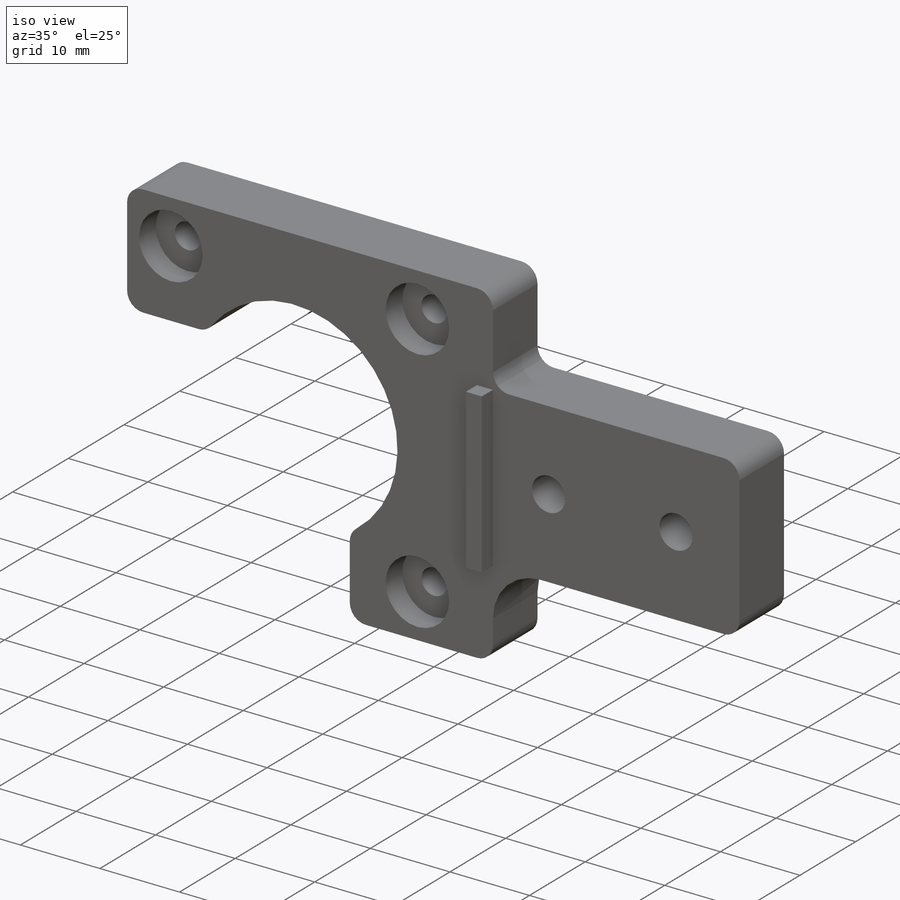
[diagram: iso view]
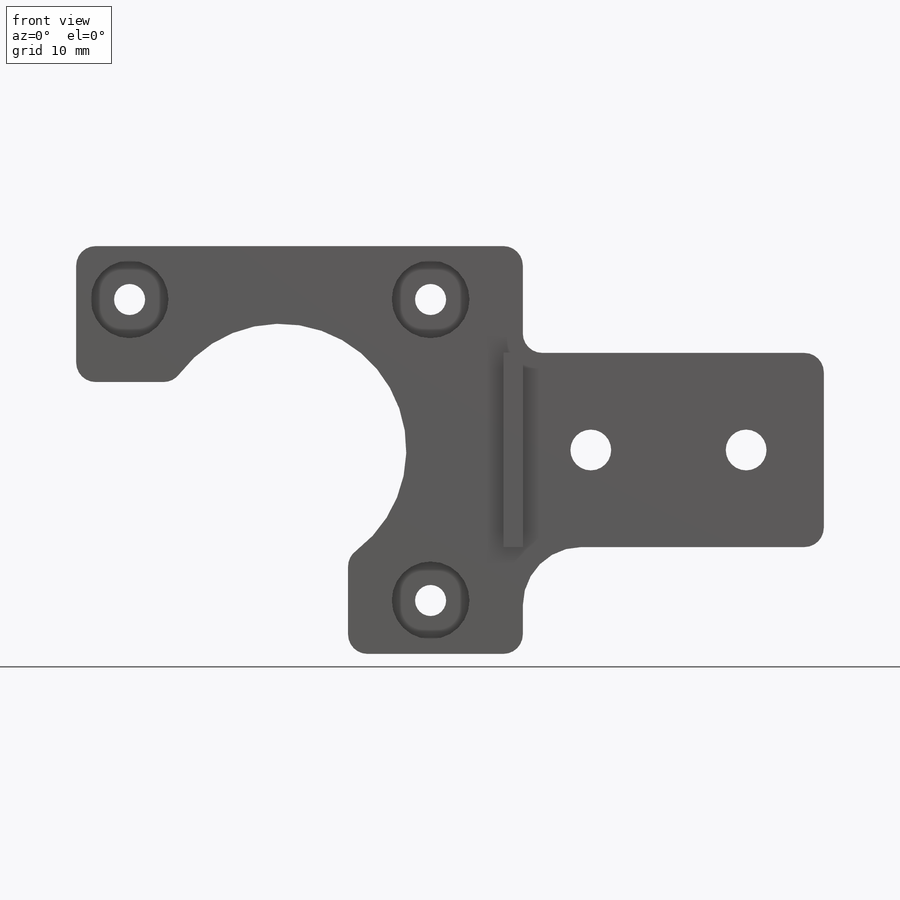
[diagram: front view]
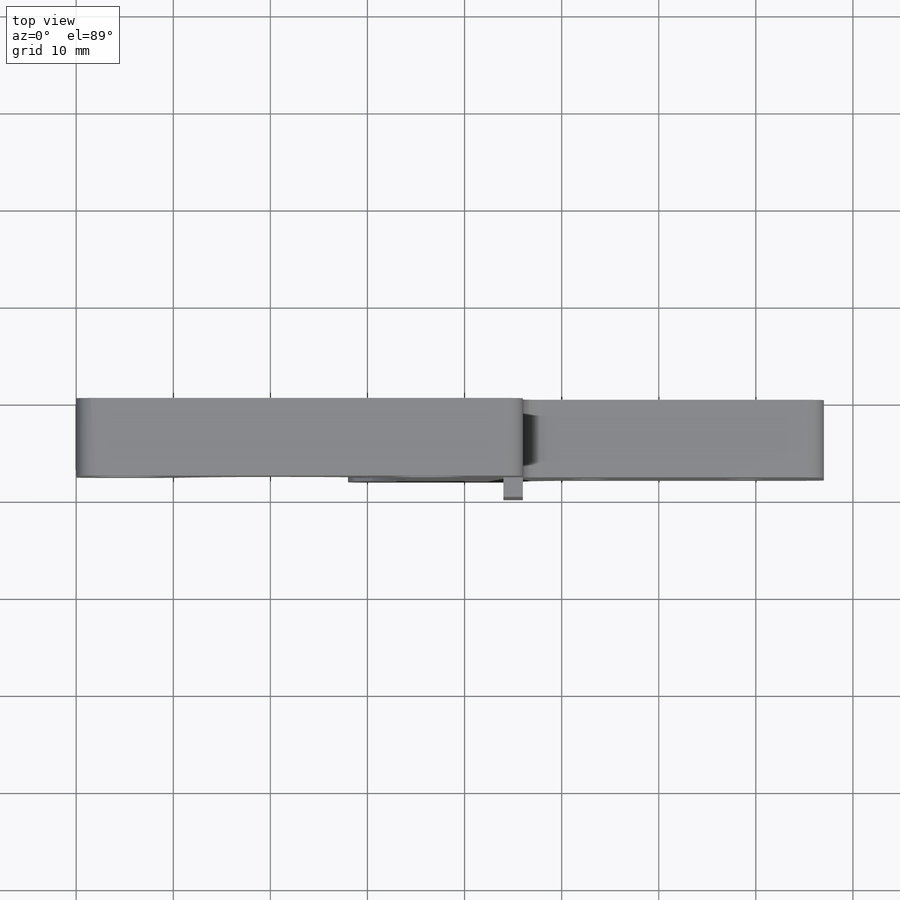
[diagram: top view]
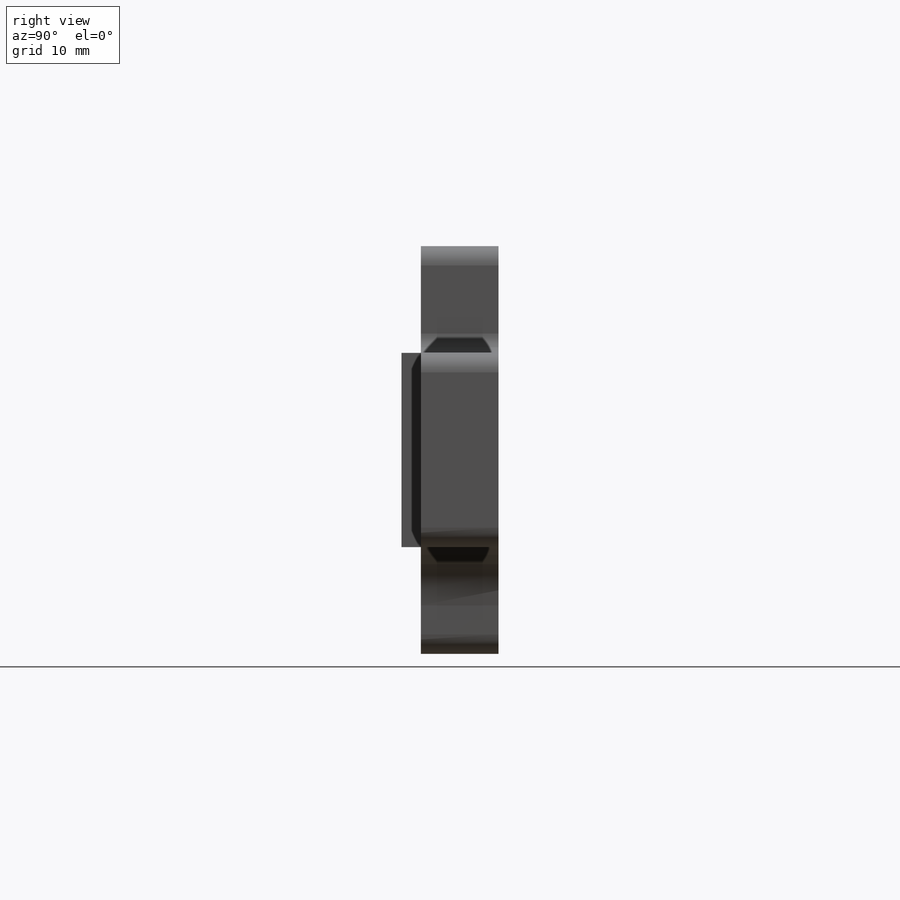
[diagram: right view]
SOLIDWORKS PART (.sldprt)
format: sldprt  version: not decoded by parser v0  size: 301,568 bytes
history: native  units: mm
features: sketch x8, cut_extrude x6, plane x3, extrude x2, fillet x2, material x1 (+8 scaffold rows collapsed)
feature tree (30):
  scaffold x8  (default folders/planes/origin — collapsed)
  material  "Material <not specified>"
  plane  "Plan de face"
  plane  "Plan de dessus"
  plane  "Plan de droite"
  sketch  "Esquisse1"  dims[D1=42.0mm D2=77.0mm]
  extrude  "Boss.-Extru.1"  Depth=8mm
  sketch  "Esquisse3"  dims[c1.D2=8.0mm c1.D3=8.0mm c1.D4=8.0mm c1.D1=42.0mm c1.D5=5.5mm c1.D6=5.5mm c1.D7=5.5mm c1.D8=5.5mm c1.D9=5500.0mm c1.D10=~8486.566846mm c1.D11=2750.0mm c1.D12=5500.0mm c2.D9=5.5mm c2.D10=5.5mm]
  cut_extrude  "Enlèv. mat.-Extru.1"  Depth=3mm
  sketch  "Esquisse4"  dims[D1=26.0mm D2=21.0mm D3=21.0mm]
  cut_extrude  "Enlèv. mat.-Extru.2"  [1 undecoded]
  sketch  "Esquisse5"  dims[D1=28.0mm D2=28.0mm]
  cut_extrude  "Enlèv. mat.-Extru.3"  [1 undecoded]
  sketch  "Esquisse10"  dims[D1=3.2mm D2=3.2mm D3=3.2mm]
  cut_extrude  "Enlèv. mat.-Extru.4"  [1 undecoded]
  sketch  "Esquisse11"  dims[c1.D1=18.0mm c1.D2=29.0mm c1.D3=11.0mm c2.D2=11.0mm c2.D4=18.0mm]
  cut_extrude  "Enlèv. mat.-Extru.5"  [1 undecoded]
  sketch  "Esquisse12"  dims[D1=4.2mm D2=4.2mm D3=21.0mm D4=21.0mm D5=8.0mm D6=16.0mm]
  cut_extrude  "Enlèv. mat.-Extru.6"  [1 undecoded]
  fillet  "Congé1"  Radius=6mm
  fillet  "Congé2"  Radius=2mm
  sketch  "Sketch1"  dims[D1=20.0mm D2=2.0mm]
  extrude  "Boss-Extrude1"  Depth=2mm
decode coverage: 13 of 18 modeling features carry decoded parameters
note: ~ marks probable driven/reference dimensions
note: 5 parameter values undecoded
summary: no parameter record found for 5 features
note: suppression state not decoded; provenance and decode notes live in map.json
